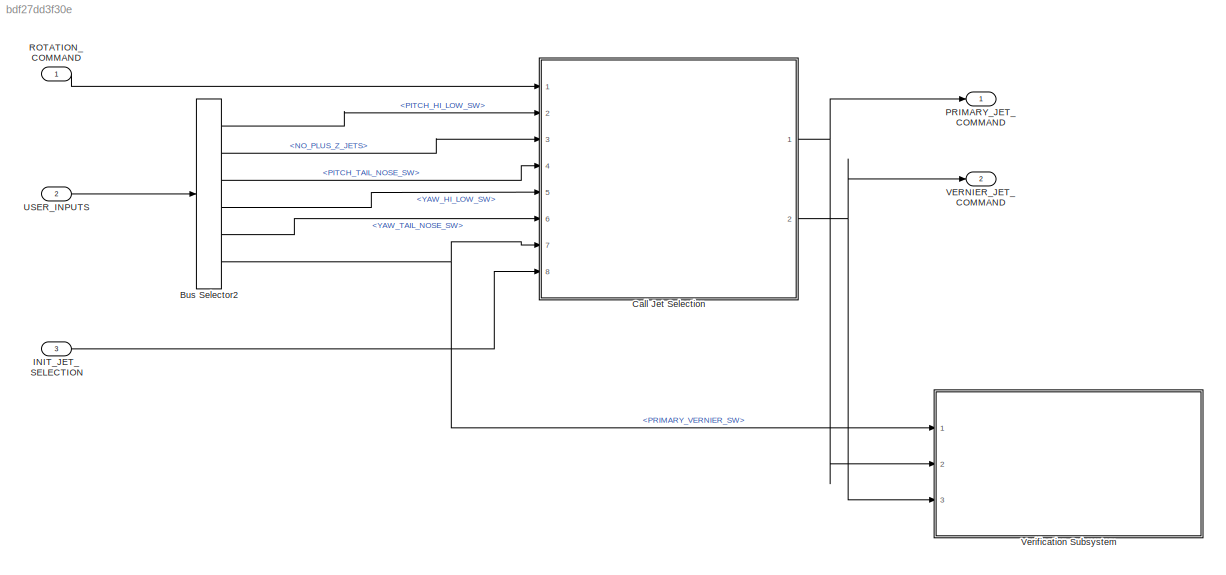
MODEL slx_bdf27dd3f30e
KIND model
CONFIG AbsTol = auto
CONFIG EnableMultiTasking = off
CONFIG FixedStep = 0.08
CONFIG MaxStep = auto
CONFIG MinStep = auto
CONFIG RelTol = 1e-3
CONFIG SampleTimeConstraint = Unconstrained
CONFIG Solver = FixedStepAuto
CONFIG SolverName = FixedStepAuto
CONFIG StartTime = 0.0
CONFIG StopTime = 10.0
WORKSPACE source: MAT-file member
WORKSPACE MCOS: class17 (value not decoded)
BLOCK [BusSelector] Bus Selector2
  OutputAsBus = off
  OutputSignals = PITCH_HI_LOW_SW,NO_PLUS_Z_JETS,PITCH_TAIL_NOSE_SW,YAW_HI_LOW_SW,YAW_TAIL_NOSE_SW,PRIMARY_VERNIER_SW
  Ports = [1, 6]
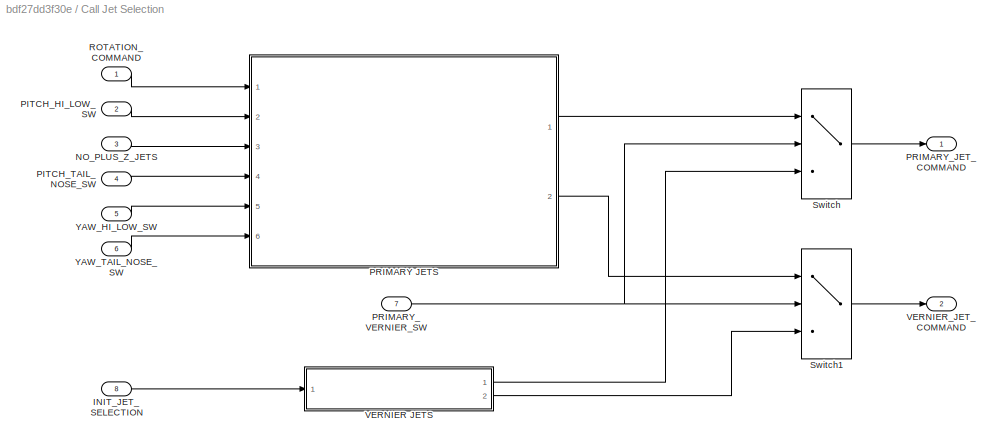
BLOCK [SubSystem] Call Jet Selection
  Ports = [8, 2]
  RequestExecContextInheritance = off
  Variant = off
BLOCK [Inport] Call Jet Selection/INIT_JET_SELECTION
  IconDisplay = Port number
  Port = 8
BLOCK [Inport] Call Jet Selection/NO_PLUS_Z_JETS
  IconDisplay = Port number
  Port = 3
BLOCK [Inport] Call Jet Selection/PITCH_HI_LOW_SW
  IconDisplay = Port number
  Port = 2
BLOCK [Inport] Call Jet Selection/PITCH_TAIL_NOSE_SW
  IconDisplay = Port number
  Port = 4
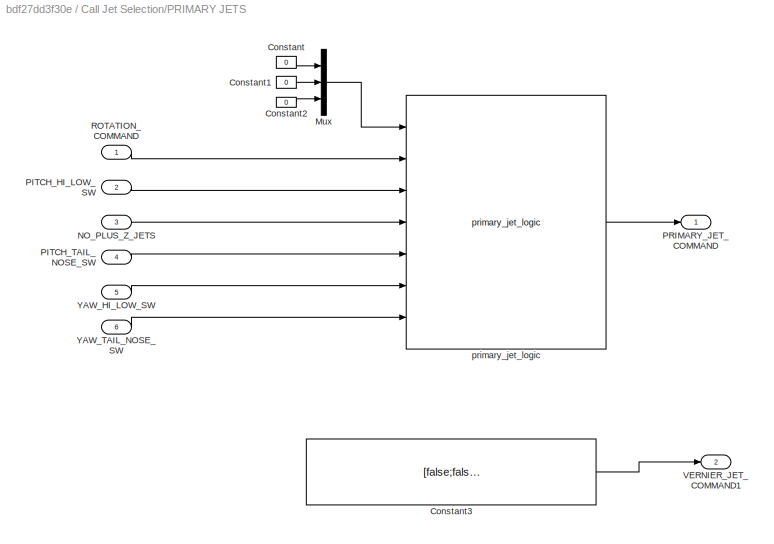
BLOCK [SubSystem] Call Jet Selection/PRIMARY JETS
  Ports = [6, 2]
  RequestExecContextInheritance = off
  TreatAsAtomicUnit = on
  Variant = off
BLOCK [Constant] Call Jet Selection/PRIMARY JETS/Constant
  Value = 0
BLOCK [Constant] Call Jet Selection/PRIMARY JETS/Constant1
  Value = 0
BLOCK [Constant] Call Jet Selection/PRIMARY JETS/Constant2
  Value = 0
BLOCK [Constant] Call Jet Selection/PRIMARY JETS/Constant3
  OutDataTypeStr = boolean
  Value = [false;false;false;false;false;false]
BLOCK [Mux] Call Jet Selection/PRIMARY JETS/Mux
  DisplayOption = bar
  Inputs = 3
  Ports = [3, 1]
BLOCK [Inport] Call Jet Selection/PRIMARY JETS/NO_PLUS_Z_JETS
  IconDisplay = Port number
  Port = 3
BLOCK [Inport] Call Jet Selection/PRIMARY JETS/PITCH_HI_LOW_SW
  IconDisplay = Port number
  Port = 2
BLOCK [Inport] Call Jet Selection/PRIMARY JETS/PITCH_TAIL_NOSE_SW
  IconDisplay = Port number
  Port = 4
BLOCK [Outport] Call Jet Selection/PRIMARY JETS/PRIMARY_JET_COMMAND
  IconDisplay = Port number
BLOCK [Inport] Call Jet Selection/PRIMARY JETS/ROTATION_COMMAND
  IconDisplay = Port number
BLOCK [Outport] Call Jet Selection/PRIMARY JETS/VERNIER_JET_COMMAND1
  IconDisplay = Port number
  Port = 2
BLOCK [Inport] Call Jet Selection/PRIMARY JETS/YAW_HI_LOW_SW
  IconDisplay = Port number
  Port = 5
BLOCK [Inport] Call Jet Selection/PRIMARY JETS/YAW_TAIL_NOSE_SW
  IconDisplay = Port number
  Port = 6
BLOCK [Reference] Call Jet Selection/PRIMARY JETS/primary_jet_logic  REF=MATLAB_Function_lib/primary_jet_logic
  Ports = [7, 1]
  SourceBlock = MATLAB_Function_lib/primary_jet_logic
  SourceType = SubSystem
BLOCK [Outport] Call Jet Selection/PRIMARY_JET_COMMAND
  IconDisplay = Port number
  OutDataTypeStr = boolean
  PortDimensions = 11
BLOCK [Inport] Call Jet Selection/PRIMARY_VERNIER_SW
  IconDisplay = Port number
  OutDataTypeStr = boolean
  Port = 7
BLOCK [Inport] Call Jet Selection/ROTATION_COMMAND
  IconDisplay = Port number
BLOCK [Switch] Call Jet Selection/Switch
  Criteria = u2 ~= 0
  InputSameDT = off
  SaturateOnIntegerOverflow = off
BLOCK [Switch] Call Jet Selection/Switch1
  Criteria = u2 ~= 0
  InputSameDT = off
  SaturateOnIntegerOverflow = off
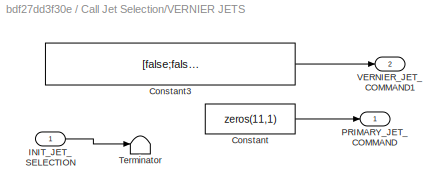
BLOCK [SubSystem] Call Jet Selection/VERNIER JETS
  Ports = [1, 2]
  RequestExecContextInheritance = off
  TreatAsAtomicUnit = on
  Variant = off
BLOCK [Constant] Call Jet Selection/VERNIER JETS/Constant
  OutDataTypeStr = boolean
  Value = zeros(11,1)
  VectorParams1D = off
BLOCK [Constant] Call Jet Selection/VERNIER JETS/Constant3
  OutDataTypeStr = boolean
  Value = [false;false;false;false;false;false]
BLOCK [Inport] Call Jet Selection/VERNIER JETS/INIT_JET_SELECTION
  IconDisplay = Port number
BLOCK [Outport] Call Jet Selection/VERNIER JETS/PRIMARY_JET_COMMAND
  IconDisplay = Port number
BLOCK [Terminator] Call Jet Selection/VERNIER JETS/Terminator
BLOCK [Outport] Call Jet Selection/VERNIER JETS/VERNIER_JET_COMMAND1
  IconDisplay = Port number
  Port = 2
BLOCK [Outport] Call Jet Selection/VERNIER_JET_COMMAND
  IconDisplay = Port number
  OutDataTypeStr = boolean
  Port = 2
  PortDimensions = 6
BLOCK [Inport] Call Jet Selection/YAW_HI_LOW_SW
  IconDisplay = Port number
  Port = 5
BLOCK [Inport] Call Jet Selection/YAW_TAIL_NOSE_SW
  IconDisplay = Port number
  Port = 6
BLOCK [Inport] INIT_JET_SELECTION
  IconDisplay = Port number
  OutDataTypeStr = boolean
  Port = 3
BLOCK [Outport] PRIMARY_JET_COMMAND
  IconDisplay = Port number
  OutDataTypeStr = boolean
  PortDimensions = 11
BLOCK [Inport] ROTATION_COMMAND
  IconDisplay = Port number
BLOCK [Inport] USER_INPUTS
  IconDisplay = Port number
  OutDataTypeStr = Bus: user_inputsBus
  Port = 2
BLOCK [Outport] VERNIER_JET_COMMAND
  IconDisplay = Port number
  OutDataTypeStr = boolean
  Port = 2
  PortDimensions = 6
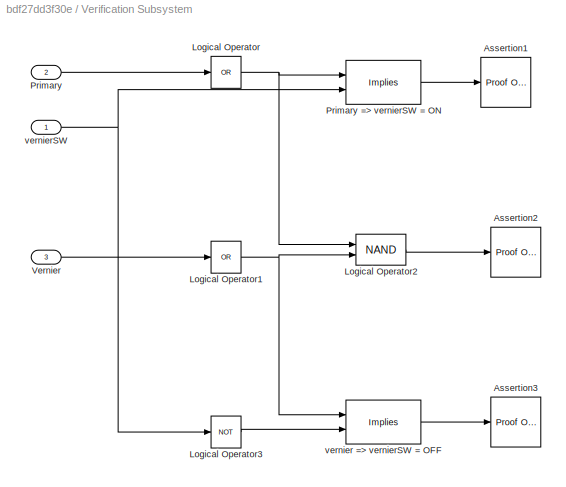
BLOCK [SubSystem] Verification Subsystem
  CopyFcn = sldvsubsys('copy');
  DisableCoverage = on
  LoadFcn = sldvsubsys('check')
  OpenFcn = open_system(gcb,'force');
  Ports = [3]
  PreSaveFcn = set_param(gcb,'SimViewingDevice','on');\nsldvsubsys('check');
  RequestExecContextInheritance = off
  SimViewingDevice = on
  Tag = VerificationSubsystem
  TreatAsAtomicUnit = on
  Variant = off
BLOCK [Reference] Verification Subsystem/Assertion1  REF=sldvlib/Objectives and Constraints/Proof Objective
  AttributesFormatString = %<intervals>
  Ports = [1]
  SourceBlock = sldvlib/Objectives and Constraints/Proof Objective
  SourceProductBaseCode = DV
  SourceProductName = Simulink Design Verifier
  SourceType = Design Verifier Proof Objective
BLOCK [Reference] Verification Subsystem/Assertion2  REF=sldvlib/Objectives and Constraints/Proof Objective
  AttributesFormatString = %<intervals>
  Ports = [1]
  SourceBlock = sldvlib/Objectives and Constraints/Proof Objective
  SourceProductBaseCode = DV
  SourceProductName = Simulink Design Verifier
  SourceType = Design Verifier Proof Objective
BLOCK [Reference] Verification Subsystem/Assertion3  REF=sldvlib/Objectives and Constraints/Proof Objective
  AttributesFormatString = %<intervals>
  Ports = [1]
  SourceBlock = sldvlib/Objectives and Constraints/Proof Objective
  SourceProductBaseCode = DV
  SourceProductName = Simulink Design Verifier
  SourceType = Design Verifier Proof Objective
BLOCK [Logic] Verification Subsystem/Logical Operator
  AllPortsSameDT = off
  Inputs = 1
  Operator = OR
  OutDataTypeStr = boolean
  Ports = [1, 1]
BLOCK [Logic] Verification Subsystem/Logical Operator1
  AllPortsSameDT = off
  Inputs = 1
  Operator = OR
  OutDataTypeStr = boolean
  Ports = [1, 1]
BLOCK [Logic] Verification Subsystem/Logical Operator2
  AllPortsSameDT = off
  Operator = NAND
  OutDataTypeStr = boolean
  Ports = [2, 1]
BLOCK [Logic] Verification Subsystem/Logical Operator3
  AllPortsSameDT = off
  Inputs = 1
  Operator = NOT
  OutDataTypeStr = boolean
  Ports = [1, 1]
BLOCK [Inport] Verification Subsystem/Primary
  IconDisplay = Port number
  Port = 2
BLOCK [Reference] Verification Subsystem/Primary => vernierSW = ON  REF=sldvlib/Verification Utilities/Implies
  Ports = [2, 1]
  SourceBlock = sldvlib/Verification Utilities/Implies
  SourceProductBaseCode = DV
  SourceProductName = Simulink Design Verifier
  SourceType = Design Verifier Implies
BLOCK [Inport] Verification Subsystem/Vernier
  IconDisplay = Port number
  Port = 3
BLOCK [Reference] Verification Subsystem/vernier => vernierSW = OFF  REF=sldvlib/Verification Utilities/Implies
  Ports = [2, 1]
  SourceBlock = sldvlib/Verification Utilities/Implies
  SourceProductBaseCode = DV
  SourceProductName = Simulink Design Verifier
  SourceType = Design Verifier Implies
BLOCK [Inport] Verification Subsystem/vernierSW
  IconDisplay = Port number
LINE Bus Selector2:1 -> Call Jet Selection:2
LINE Bus Selector2:2 -> Call Jet Selection:3
LINE Bus Selector2:3 -> Call Jet Selection:4
LINE Bus Selector2:4 -> Call Jet Selection:5
LINE Bus Selector2:5 -> Call Jet Selection:6
NET Bus Selector2:6 -> Call Jet Selection:7, Verification Subsystem:1
LINE Call Jet Selection/INIT_JET_SELECTION:1 -> Call Jet Selection/VERNIER JETS:1
LINE Call Jet Selection/NO_PLUS_Z_JETS:1 -> Call Jet Selection/PRIMARY JETS:3
LINE Call Jet Selection/PITCH_HI_LOW_SW:1 -> Call Jet Selection/PRIMARY JETS:2
LINE Call Jet Selection/PITCH_TAIL_NOSE_SW:1 -> Call Jet Selection/PRIMARY JETS:4
LINE Call Jet Selection/PRIMARY JETS/Constant1:1 -> Call Jet Selection/PRIMARY JETS/Mux:2
LINE Call Jet Selection/PRIMARY JETS/Constant2:1 -> Call Jet Selection/PRIMARY JETS/Mux:3
LINE Call Jet Selection/PRIMARY JETS/Constant3:1 -> Call Jet Selection/PRIMARY JETS/VERNIER_JET_COMMAND1:1
LINE Call Jet Selection/PRIMARY JETS/Constant:1 -> Call Jet Selection/PRIMARY JETS/Mux:1
LINE Call Jet Selection/PRIMARY JETS/Mux:1 -> Call Jet Selection/PRIMARY JETS/primary_jet_logic:1
LINE Call Jet Selection/PRIMARY JETS/NO_PLUS_Z_JETS:1 -> Call Jet Selection/PRIMARY JETS/primary_jet_logic:4
LINE Call Jet Selection/PRIMARY JETS/PITCH_HI_LOW_SW:1 -> Call Jet Selection/PRIMARY JETS/primary_jet_logic:3
LINE Call Jet Selection/PRIMARY JETS/PITCH_TAIL_NOSE_SW:1 -> Call Jet Selection/PRIMARY JETS/primary_jet_logic:5
LINE Call Jet Selection/PRIMARY JETS/ROTATION_COMMAND:1 -> Call Jet Selection/PRIMARY JETS/primary_jet_logic:2
LINE Call Jet Selection/PRIMARY JETS/YAW_HI_LOW_SW:1 -> Call Jet Selection/PRIMARY JETS/primary_jet_logic:6
LINE Call Jet Selection/PRIMARY JETS/YAW_TAIL_NOSE_SW:1 -> Call Jet Selection/PRIMARY JETS/primary_jet_logic:7
LINE Call Jet Selection/PRIMARY JETS/primary_jet_logic:1 -> Call Jet Selection/PRIMARY JETS/PRIMARY_JET_COMMAND:1
LINE Call Jet Selection/PRIMARY JETS:1 -> Call Jet Selection/Switch:1
LINE Call Jet Selection/PRIMARY JETS:2 -> Call Jet Selection/Switch1:1
NET Call Jet Selection/PRIMARY_VERNIER_SW:1 -> Call Jet Selection/Switch1:2, Call Jet Selection/Switch:2
LINE Call Jet Selection/ROTATION_COMMAND:1 -> Call Jet Selection/PRIMARY JETS:1
LINE Call Jet Selection/Switch1:1 -> Call Jet Selection/VERNIER_JET_COMMAND:1
LINE Call Jet Selection/Switch:1 -> Call Jet Selection/PRIMARY_JET_COMMAND:1
LINE Call Jet Selection/VERNIER JETS/Constant3:1 -> Call Jet Selection/VERNIER JETS/VERNIER_JET_COMMAND1:1
LINE Call Jet Selection/VERNIER JETS/Constant:1 -> Call Jet Selection/VERNIER JETS/PRIMARY_JET_COMMAND:1
LINE Call Jet Selection/VERNIER JETS/INIT_JET_SELECTION:1 -> Call Jet Selection/VERNIER JETS/Terminator:1
LINE Call Jet Selection/VERNIER JETS:1 -> Call Jet Selection/Switch:3
LINE Call Jet Selection/VERNIER JETS:2 -> Call Jet Selection/Switch1:3
LINE Call Jet Selection/YAW_HI_LOW_SW:1 -> Call Jet Selection/PRIMARY JETS:5
LINE Call Jet Selection/YAW_TAIL_NOSE_SW:1 -> Call Jet Selection/PRIMARY JETS:6
NET Call Jet Selection:1 -> PRIMARY_JET_COMMAND:1, Verification Subsystem:2
NET Call Jet Selection:2 -> VERNIER_JET_COMMAND:1, Verification Subsystem:3
LINE INIT_JET_SELECTION:1 -> Call Jet Selection:8
LINE ROTATION_COMMAND:1 -> Call Jet Selection:1
LINE USER_INPUTS:1 -> Bus Selector2:1
note: NET lines group one-source signal fan-out (src -> all destinations, sorted); 1:1 wires keep LINE
